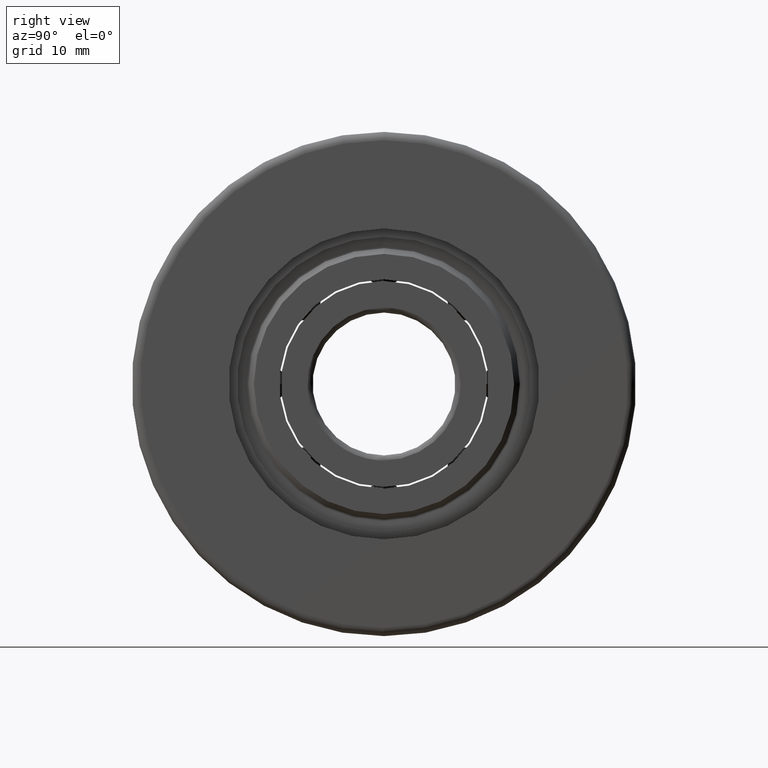
[diagram: clean part render]
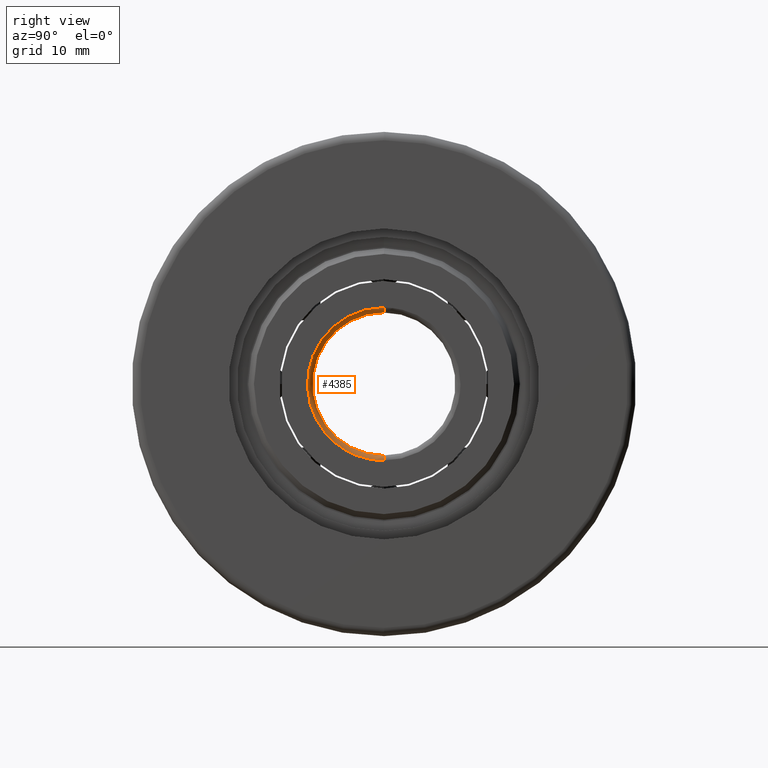
[diagram: same view with one face highlighted and labeled with its STEP entity id]
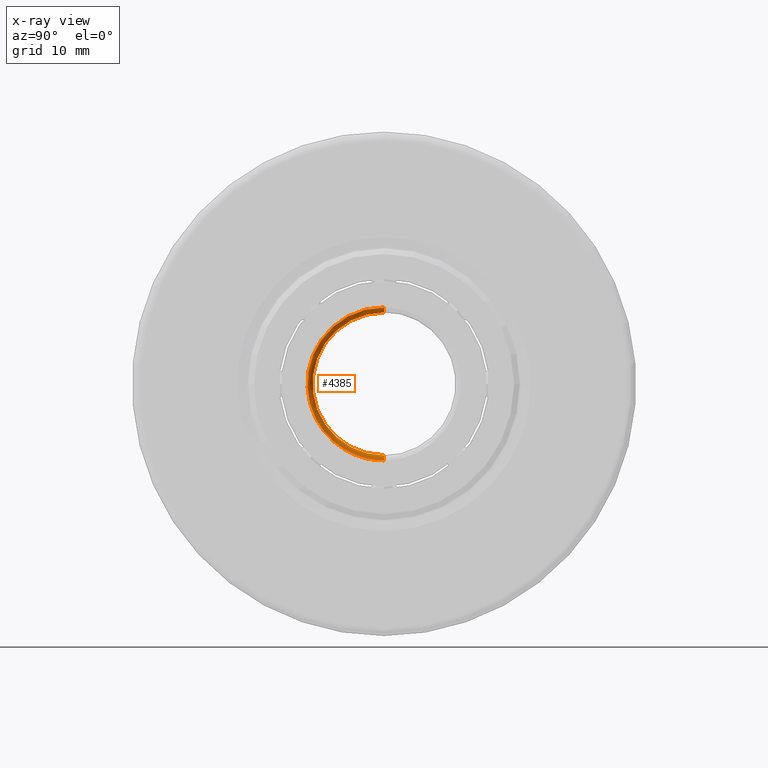
[diagram: x-ray of the same camera — body ghosted, the highlighted face saturated]
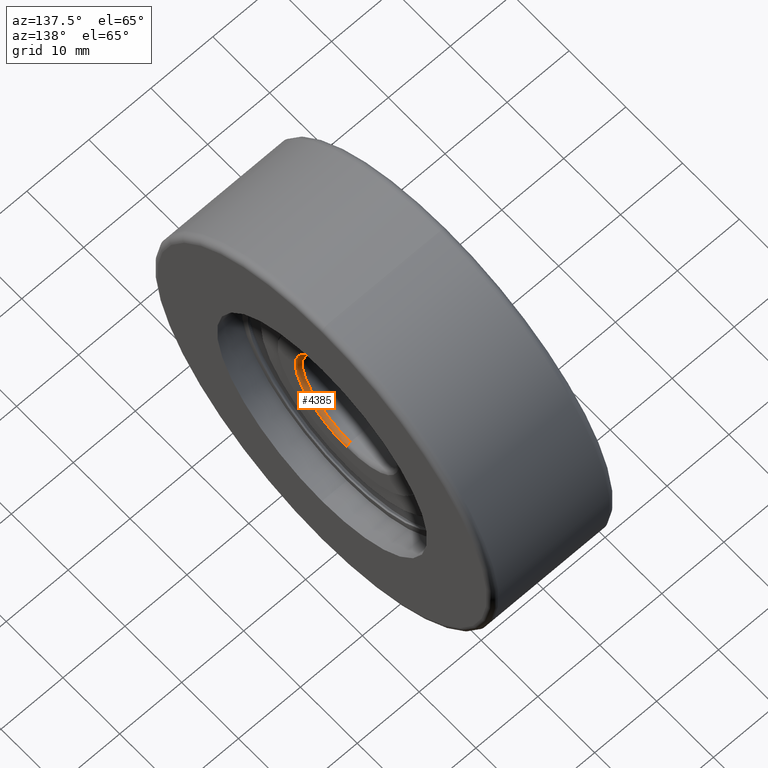
[diagram: same view with one face highlighted and labeled with its STEP entity id]
A machine part, right view. The second image highlights one B-rep face of the part: STEP entity #4385.
The next image is the same camera in x-ray: the body ghosted, the highlighted face saturated — about 0% of this face is hidden behind the body in this view.
A second angle (auxiliary view) of the same face is appended — the face is thin or edge-on in the first view.
In plain terms, the highlighted face is a freeform B-spline surface patch.
Its self-contained STEP definition (entity closure, byte-faithful):
#149 = CARTESIAN_POINT ( 'NONE',  ( 12.00000000000000000, -2.228857174448182900E-015, -9.099999999999999600 ) ) ;
#187 = CARTESIAN_POINT ( 'NONE',  ( 12.00000000000000000, -2.142771396149336500E-015, -8.748528137423857500 ) ) ;
#219 = DIRECTION ( 'NONE',  ( 0.0000000000000000000, 1.224646799147353200E-016, 1.000000000000000000 ) ) ;
#225 = CARTESIAN_POINT ( 'NONE',  ( 11.75147186257614300, -17.00000000000000400, -8.499999999999998200 ) ) ;
#240 = CARTESIAN_POINT ( 'NONE',  ( 11.40000000000000000, 0.0000000000000000000, 0.0000000000000000000 ) ) ;
#427 = CARTESIAN_POINT ( 'NONE',  ( 11.40000000000000000, 0.0000000000000000000, -8.500000000000000000 ) ) ;
#587 = CARTESIAN_POINT ( 'NONE',  ( 11.75147186257614400, -2.081899558550500700E-015, -8.500000000000000000 ) ) ;
#640 = CARTESIAN_POINT ( 'NONE',  ( 11.40000000000000000, -2.081899558550500300E-015, -8.500000000000000000 ) ) ;
#1041 = CARTESIAN_POINT ( 'NONE',  ( 12.00000000000000000, 1.114428587224091500E-015, 9.099999999999999600 ) ) ;
#1159 = CARTESIAN_POINT ( 'NONE',  ( 12.00000000000000000, -6.938893903907228400E-016, -9.099999999999999600 ) ) ;
#1275 = VERTEX_POINT ( 'NONE', #3042 ) ;
#1337 = ORIENTED_EDGE ( 'NONE', *, *, #3336, .T. ) ;
#1462 = CARTESIAN_POINT ( 'NONE',  ( 12.00000000000000200, -18.19999999999999600, 9.100000000000001400 ) ) ;
#1551 =( BOUNDED_SURFACE ( )  B_SPLINE_SURFACE ( 3, 3, ( 
 ( #2296, #1886, #2313, #640 ),
 ( #2809, #4061, #225, #587 ),
 ( #4533, #3234, #2373, #187 ),
 ( #1041, #3175, #5391, #149 ) ),
 .UNSPECIFIED., .F., .F., .F. ) 
 B_SPLINE_SURFACE_WITH_KNOTS ( ( 4, 4 ),
 ( 4, 4 ),
 ( 0.0000000000000000000, 1.000000000000000000 ),
 ( 0.0000000000000000000, 1.000000000000000000 ),
 .UNSPECIFIED. ) 
 GEOMETRIC_REPRESENTATION_ITEM ( )  RATIONAL_B_SPLINE_SURFACE ( (
 ( 1.000000000000000000, 0.3333333333333334300, 0.3333333333333334300, 1.000000000000000000),
 ( 0.8047378541243649400, 0.2682459513747884100, 0.2682459513747884100, 0.8047378541243649400),
 ( 0.8047378541243649400, 0.2682459513747884100, 0.2682459513747884100, 0.8047378541243649400),
 ( 1.000000000000000000, 0.3333333333333334300, 0.3333333333333334300, 1.000000000000000000) ) ) 
 REPRESENTATION_ITEM ( '' )  SURFACE ( )  );
#1886 = CARTESIAN_POINT ( 'NONE',  ( 11.40000000000000000, -16.99999999999999600, 8.500000000000001800 ) ) ;
#2069 = ORIENTED_EDGE ( 'NONE', *, *, #2223, .T. ) ;
#2110 = CARTESIAN_POINT ( 'NONE',  ( 11.40000000000000000, 0.0000000000000000000, -9.099999999999999600 ) ) ;
#2146 = ORIENTED_EDGE ( 'NONE', *, *, #2508, .T. ) ;
#2223 = EDGE_CURVE ( 'NONE', #3581, #2712, #3488, .T. ) ;
#2296 = CARTESIAN_POINT ( 'NONE',  ( 11.40000000000000000, 1.040949779275250100E-015, 8.500000000000000000 ) ) ;
#2313 = CARTESIAN_POINT ( 'NONE',  ( 11.40000000000000000, -17.00000000000000000, -8.499999999999996400 ) ) ;
#2330 = CARTESIAN_POINT ( 'NONE',  ( 11.40000000000000000, 1.114428587224091500E-015, 9.099999999999999600 ) ) ;
#2366 = CARTESIAN_POINT ( 'NONE',  ( 12.00000000000000200, -18.19999999999999600, -9.099999999999997900 ) ) ;
#2373 = CARTESIAN_POINT ( 'NONE',  ( 12.00000000000000000, -17.49705627484771500, -8.748528137423853900 ) ) ;
#2508 = EDGE_CURVE ( 'NONE', #1275, #2577, #3295, .T. ) ;
#2577 = VERTEX_POINT ( 'NONE', #1159 ) ;
#2712 = VERTEX_POINT ( 'NONE', #3101 ) ;
#2809 = CARTESIAN_POINT ( 'NONE',  ( 11.75147186257614400, 1.040949779275250300E-015, 8.500000000000000000 ) ) ;
#3009 = CIRCLE ( 'NONE', #4358, 0.5999999999999998700 ) ;
#3042 = CARTESIAN_POINT ( 'NONE',  ( 12.00000000000000000, 1.362546542725177600E-015, 9.099999999999999600 ) ) ;
#3101 = CARTESIAN_POINT ( 'NONE',  ( 11.40000000000000000, 1.040949779275250100E-015, 8.500000000000000000 ) ) ;
#3175 = CARTESIAN_POINT ( 'NONE',  ( 12.00000000000000000, -18.19999999999999600, 9.100000000000003200 ) ) ;
#3219 = EDGE_CURVE ( 'NONE', #3581, #2577, #3009, .T. ) ;
#3234 = CARTESIAN_POINT ( 'NONE',  ( 12.00000000000000000, -17.49705627484771100, 8.748528137423859300 ) ) ;
#3248 = CARTESIAN_POINT ( 'NONE',  ( 12.00000000000000000, 1.362546542725177600E-015, 9.099999999999999600 ) ) ;
#3295 =( BOUNDED_CURVE ( )  B_SPLINE_CURVE ( 3, ( #3248, #1462, #2366, #4528 ),
 .UNSPECIFIED., .F., .F. ) 
 B_SPLINE_CURVE_WITH_KNOTS ( ( 4, 4 ),
 ( 0.0000000000000000000, 1.000000000000000000 ),
 .UNSPECIFIED. ) 
 CURVE ( )  GEOMETRIC_REPRESENTATION_ITEM ( )  RATIONAL_B_SPLINE_CURVE ( ( 1.000000000000000000, 0.3333333333333333700, 0.3333333333333333700, 1.000000000000000000 ) ) 
 REPRESENTATION_ITEM ( '' )  );
#3336 = EDGE_CURVE ( 'NONE', #2712, #1275, #4073, .T. ) ;
#3488 = CIRCLE ( 'NONE', #4497, 8.500000000000000000 ) ;
#3581 = VERTEX_POINT ( 'NONE', #427 ) ;
#3647 = DIRECTION ( 'NONE',  ( -1.000000000000000000, -0.0000000000000000000, -0.0000000000000000000 ) ) ;
#3779 = ORIENTED_EDGE ( 'NONE', *, *, #3219, .F. ) ;
#3886 = DIRECTION ( 'NONE',  ( 0.0000000000000000000, 1.000000000000000000, 0.0000000000000000000 ) ) ;
#4019 = DIRECTION ( 'NONE',  ( 0.0000000000000000000, 0.0000000000000000000, -1.000000000000000000 ) ) ;
#4061 = CARTESIAN_POINT ( 'NONE',  ( 11.75147186257614300, -17.00000000000000000, 8.500000000000003600 ) ) ;
#4073 = CIRCLE ( 'NONE', #5294, 0.5999999999999998700 ) ;
#4124 = DIRECTION ( 'NONE',  ( 0.0000000000000000000, -1.000000000000000000, 1.224646799147353200E-016 ) ) ;
#4358 = AXIS2_PLACEMENT_3D ( 'NONE', #2110, #3886, #5586 ) ;
#4385 = ADVANCED_FACE ( 'NONE', ( #5009 ), #1551, .T. ) ;
#4497 = AXIS2_PLACEMENT_3D ( 'NONE', #240, #3647, #4019 ) ;
#4528 = CARTESIAN_POINT ( 'NONE',  ( 12.00000000000000000, -6.938893903907228400E-016, -9.099999999999999600 ) ) ;
#4533 = CARTESIAN_POINT ( 'NONE',  ( 12.00000000000000000, 1.071385698074668200E-015, 8.748528137423857500 ) ) ;
#4794 = EDGE_LOOP ( 'NONE', ( #2069, #1337, #2146, #3779 ) ) ;
#5009 = FACE_OUTER_BOUND ( 'NONE', #4794, .T. ) ;
#5294 = AXIS2_PLACEMENT_3D ( 'NONE', #2330, #4124, #219 ) ;
#5391 = CARTESIAN_POINT ( 'NONE',  ( 12.00000000000000000, -18.20000000000000300, -9.099999999999996100 ) ) ;
#5586 = DIRECTION ( 'NONE',  ( 0.0000000000000000000, 0.0000000000000000000, -1.000000000000000000 ) ) ;